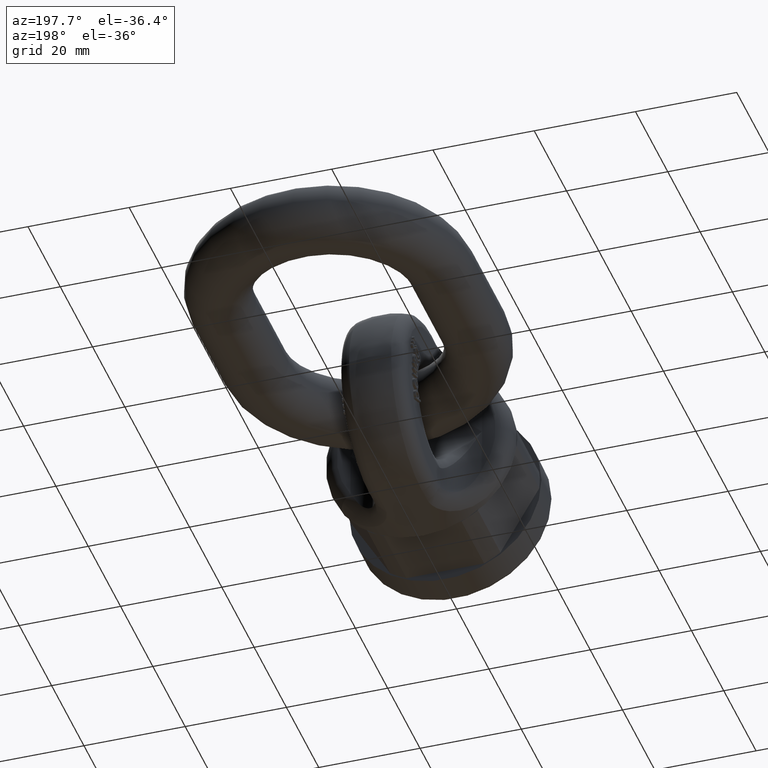
[diagram: clean part render]
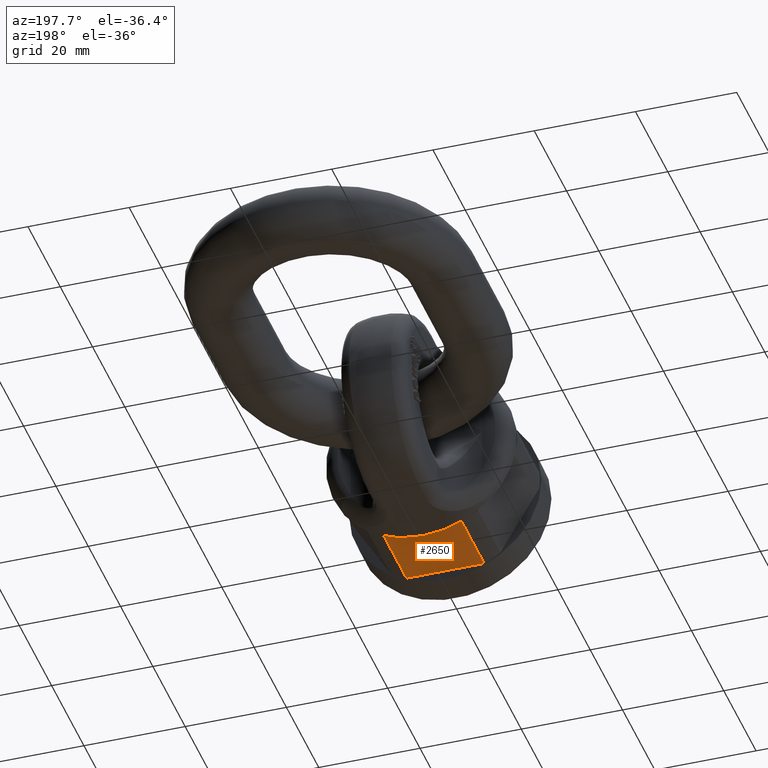
[diagram: same view with one face highlighted and labeled with its STEP entity id]
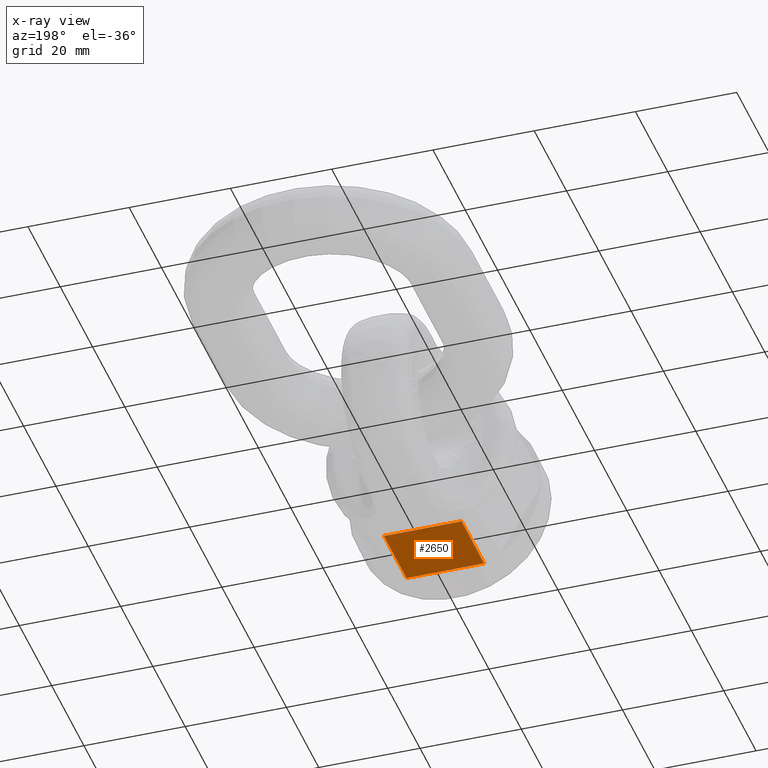
[diagram: x-ray of the same camera — body ghosted, the highlighted face saturated]
A machine part, auxiliary view. The second image highlights one B-rep face of the part: STEP entity #2650.
The next image is the same camera in x-ray: the body ghosted, the highlighted face saturated — about 0% of this face is hidden behind the body in this view.
In plain terms, the highlighted planar face has unit normal (0, 0, -1).
Its self-contained STEP definition (entity closure, byte-faithful):
#1808=FACE_OUTER_BOUND('',#3073,.T.);
#2045=LINE('',#6594,#2301);
#2053=LINE('',#6617,#2309);
#2054=LINE('',#6619,#2310);
#2055=LINE('',#6621,#2311);
#2301=VECTOR('',#5831,1.);
#2309=VECTOR('',#5853,1.);
#2310=VECTOR('',#5854,1.);
#2311=VECTOR('',#5855,1.);
#2650=ADVANCED_FACE('',(#1808),#2892,.T.);
#2892=PLANE('',#5619);
#3073=EDGE_LOOP('',(#3376,#3377,#3378,#3379));
#3376=ORIENTED_EDGE('',*,*,#4963,.F.);
#3377=ORIENTED_EDGE('',*,*,#4952,.T.);
#3378=ORIENTED_EDGE('',*,*,#4964,.F.);
#3379=ORIENTED_EDGE('',*,*,#4965,.T.);
#4554=VERTEX_POINT('',#6593);
#4555=VERTEX_POINT('',#6595);
#4563=VERTEX_POINT('',#6618);
#4564=VERTEX_POINT('',#6620);
#4952=EDGE_CURVE('',#4555,#4554,#2045,.T.);
#4963=EDGE_CURVE('',#4555,#4563,#2053,.T.);
#4964=EDGE_CURVE('',#4564,#4554,#2054,.T.);
#4965=EDGE_CURVE('',#4564,#4563,#2055,.T.);
#5619=AXIS2_PLACEMENT_3D('',#6622,#5856,#5857);
#5831=DIRECTION('',(-1.,-3.82702124733548E-17,0.));
#5853=DIRECTION('',(-2.4492935982947E-17,1.,0.));
#5854=DIRECTION('',(2.4492935982947E-17,-1.,0.));
#5855=DIRECTION('',(1.,0.,0.));
#5856=DIRECTION('',(0.,0.,-1.));
#5857=DIRECTION('',(-1.,0.,0.));
#6593=CARTESIAN_POINT('',(-7.66572457979366,7.,-17.));
#6594=CARTESIAN_POINT('',(19.,7.,-17.));
#6595=CARTESIAN_POINT('',(7.66572457979367,7.,-17.));
#6617=CARTESIAN_POINT('',(7.66572457979367,1.8775610139579E-16,-17.));
#6618=CARTESIAN_POINT('',(7.66572457979366,21.,-17.));
#6619=CARTESIAN_POINT('',(-7.66572457979367,-1.8775610139579E-16,-17.));
#6620=CARTESIAN_POINT('',(-7.66572457979366,21.,-17.));
#6621=CARTESIAN_POINT('',(-9.81495457622363,21.,-17.));
#6622=CARTESIAN_POINT('',(-9.81495457622363,21.,-17.));